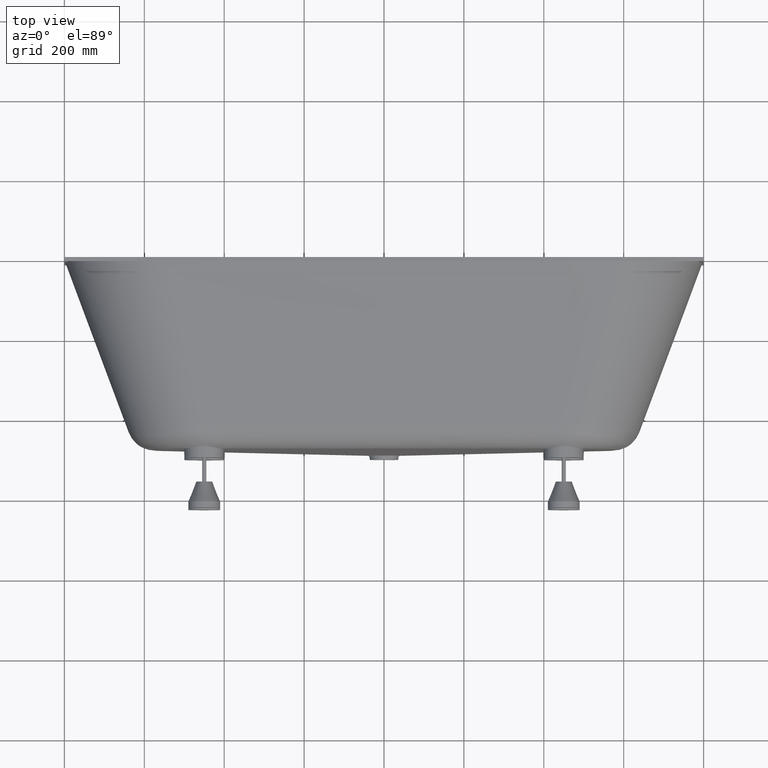
[diagram: clean part render]
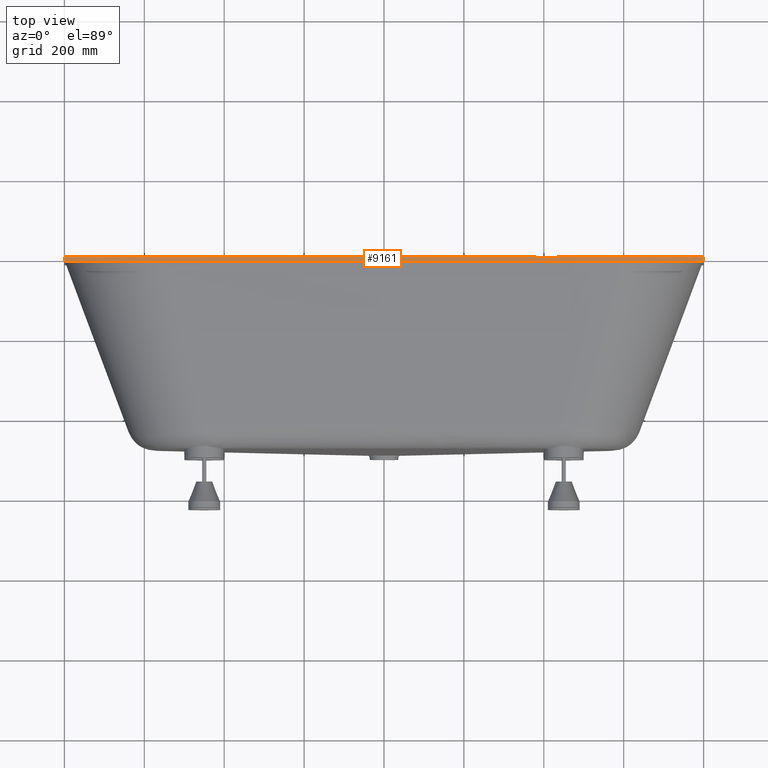
[diagram: same view with one face highlighted and labeled with its STEP entity id]
A machine part, top view. The second image highlights one B-rep face of the part: STEP entity #9161.
In plain terms, the highlighted planar face has unit normal (-0, 0, 1).
Its self-contained STEP definition (entity closure, byte-faithful):
#436 = DIRECTION ( 'NONE',  ( 0.0000000000000000000, 1.000000000000000000, 0.0000000000000000000 ) ) ;
#950 = CARTESIAN_POINT ( 'NONE',  ( -799.9999999999997726, -10.00000000000000000, 315.0000000000000000 ) ) ;
#1159 = LINE ( 'NONE', #9308, #15701 ) ;
#1191 = ORIENTED_EDGE ( 'NONE', *, *, #25469, .T. ) ;
#2501 = EDGE_CURVE ( 'NONE', #8434, #2717, #24306, .T. ) ;
#2717 = VERTEX_POINT ( 'NONE', #21238 ) ;
#3457 = EDGE_CURVE ( 'NONE', #2717, #15922, #16139, .T. ) ;
#4231 = LINE ( 'NONE', #12383, #21922 ) ;
#4539 = CARTESIAN_POINT ( 'NONE',  ( -799.9999999999997726, -10.00000000000000000, 315.0000000000000000 ) ) ;
#4584 = VECTOR ( 'NONE', #436, 1000.000000000000000 ) ;
#5418 = EDGE_CURVE ( 'NONE', #21872, #15922, #1159, .T. ) ;
#6051 = ORIENTED_EDGE ( 'NONE', *, *, #3457, .F. ) ;
#7051 = EDGE_LOOP ( 'NONE', ( #6051, #25638, #1191, #19000 ) ) ;
#8434 = VERTEX_POINT ( 'NONE', #17499 ) ;
#9161 = ADVANCED_FACE ( 'NONE', ( #14702 ), #22817, .T. ) ;
#9308 = CARTESIAN_POINT ( 'NONE',  ( 800.0000000000001137, -10.00000000000000000, 315.0000000000000568 ) ) ;
#11435 = AXIS2_PLACEMENT_3D ( 'NONE', #4539, #12694, #20827 ) ;
#12383 = CARTESIAN_POINT ( 'NONE',  ( -799.9999999999997726, -10.00000000000000000, 315.0000000000000000 ) ) ;
#12694 = DIRECTION ( 'NONE',  ( -3.469446951953614189E-17, 0.0000000000000000000, 1.000000000000000000 ) ) ;
#14702 = FACE_OUTER_BOUND ( 'NONE', #7051, .T. ) ;
#15701 = VECTOR ( 'NONE', #17449, 1000.000000000000000 ) ;
#15922 = VERTEX_POINT ( 'NONE', #18045 ) ;
#16139 = LINE ( 'NONE', #24246, #19956 ) ;
#17449 = DIRECTION ( 'NONE',  ( 0.0000000000000000000, 1.000000000000000000, 0.0000000000000000000 ) ) ;
#17499 = CARTESIAN_POINT ( 'NONE',  ( -799.9999999999997726, -10.00000000000000000, 315.0000000000000000 ) ) ;
#18045 = CARTESIAN_POINT ( 'NONE',  ( 800.0000000000001137, 0.0000000000000000000, 315.0000000000000568 ) ) ;
#18125 = DIRECTION ( 'NONE',  ( 1.000000000000000000, 0.0000000000000000000, 3.469446951953614189E-17 ) ) ;
#19000 = ORIENTED_EDGE ( 'NONE', *, *, #5418, .T. ) ;
#19956 = VECTOR ( 'NONE', #18125, 1000.000000000000000 ) ;
#20518 = DIRECTION ( 'NONE',  ( 1.000000000000000000, 0.0000000000000000000, 3.469446951953614189E-17 ) ) ;
#20827 = DIRECTION ( 'NONE',  ( 1.000000000000000000, 0.0000000000000000000, 3.469446951953614189E-17 ) ) ;
#21238 = CARTESIAN_POINT ( 'NONE',  ( -799.9999999999997726, 0.0000000000000000000, 315.0000000000000000 ) ) ;
#21872 = VERTEX_POINT ( 'NONE', #25440 ) ;
#21922 = VECTOR ( 'NONE', #20518, 1000.000000000000000 ) ;
#22817 = PLANE ( 'NONE',  #11435 ) ;
#24246 = CARTESIAN_POINT ( 'NONE',  ( -799.9999999999997726, 0.0000000000000000000, 315.0000000000000000 ) ) ;
#24306 = LINE ( 'NONE', #950, #4584 ) ;
#25440 = CARTESIAN_POINT ( 'NONE',  ( 800.0000000000001137, -10.00000000000000000, 315.0000000000000568 ) ) ;
#25469 = EDGE_CURVE ( 'NONE', #8434, #21872, #4231, .T. ) ;
#25638 = ORIENTED_EDGE ( 'NONE', *, *, #2501, .F. ) ;